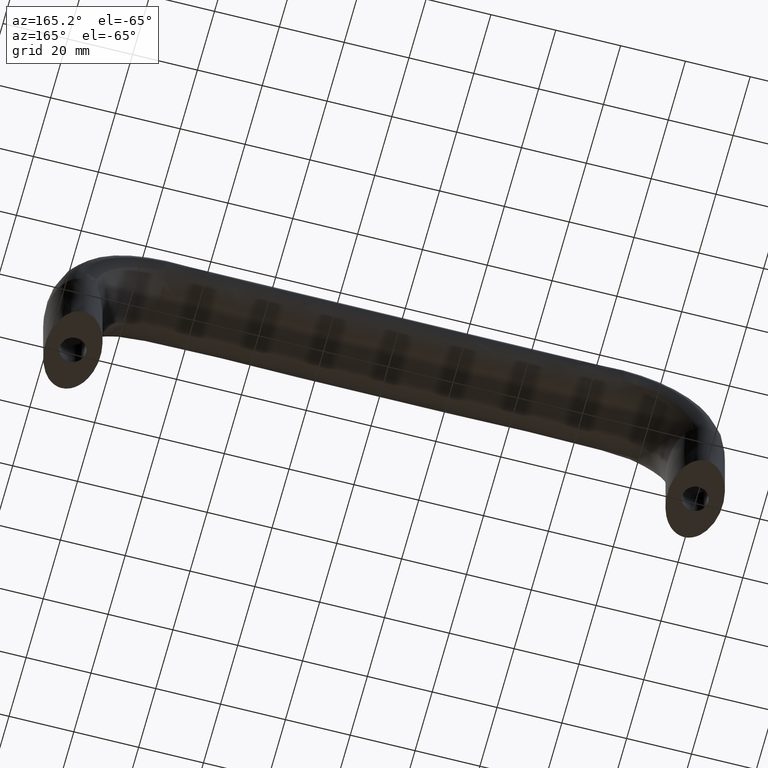
[diagram: clean part render]
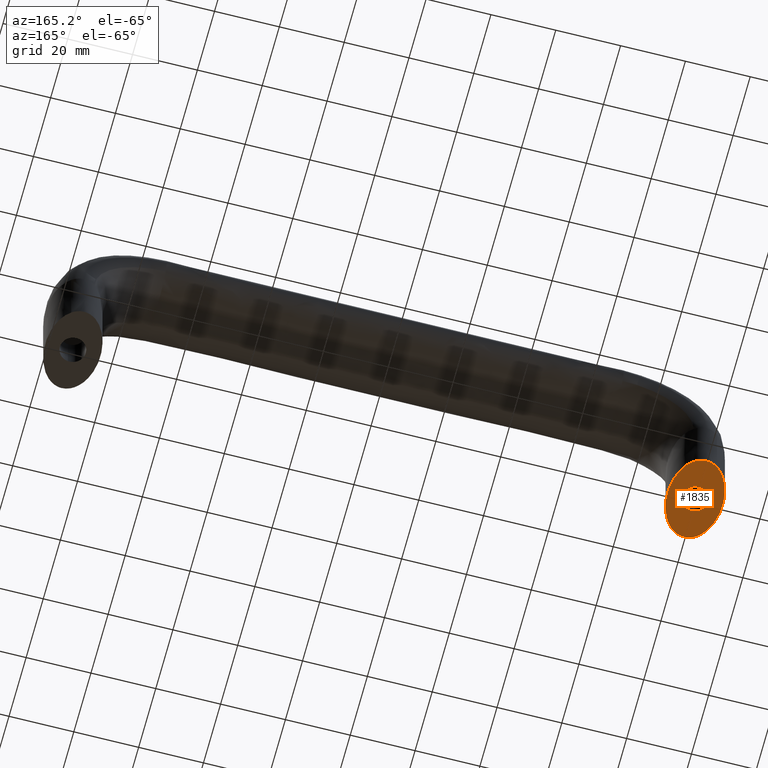
[diagram: same view with one face highlighted and labeled with its STEP entity id]
A machine part, auxiliary view. The second image highlights one B-rep face of the part: STEP entity #1835.
In plain terms, the highlighted face is a freeform B-spline surface patch.
Its self-contained STEP definition (entity closure, byte-faithful):
#85=CARTESIAN_POINT('',(0.472136939499125,-3.972038105351004,-3.407314E-016));
#86=VERTEX_POINT('',#85);
#92=CARTESIAN_POINT('',(-4.0,0.0,0.0));
#93=VERTEX_POINT('',#92);
#94=CARTESIAN_POINT('',(0.472136939499125,-3.972038105351003,-3.407314E-016));
#95=CARTESIAN_POINT('',(0.236896479488952,-4.0,0.0));
#96=CARTESIAN_POINT('',(0.0,-4.0,0.0));
#97=CARTESIAN_POINT('',(-4.000000000000000,-4.000000000000000,0.0));
#98=CARTESIAN_POINT('',(-4.0,0.0,0.0));
#106=(BOUNDED_CURVE()B_SPLINE_CURVE(2,(#94,#95,#96,#97,#98),.UNSPECIFIED.,.F.,.U.)B_SPLINE_CURVE_WITH_KNOTS((3,2,3),(0.229562473441432,0.250000000000000,0.500000000000000),.UNSPECIFIED.)CURVE()GEOMETRIC_REPRESENTATION_ITEM()RATIONAL_B_SPLINE_CURVE((0.956026754042427,0.976055948246703,1.0,0.707106781186548,1.0))REPRESENTATION_ITEM(''));
#107=EDGE_CURVE('',#86,#93,#106,.T.);
#109=CARTESIAN_POINT('',(-0.244194159171717,3.992539193624330,-3.330669E-016));
#110=VERTEX_POINT('',#109);
#111=CARTESIAN_POINT('',(-4.0,0.0,0.0));
#112=CARTESIAN_POINT('',(-4.0,3.762824265673356,0.0));
#113=CARTESIAN_POINT('',(-0.244194159171717,3.992539193624330,-3.330669E-016));
#121=(BOUNDED_CURVE()B_SPLINE_CURVE(2,(#111,#112,#113),.UNSPECIFIED.,.F.,.U.)B_SPLINE_CURVE_WITH_KNOTS((3,3),(0.500000000000000,0.739332962152743),.UNSPECIFIED.)CURVE()GEOMETRIC_REPRESENTATION_ITEM()RATIONAL_B_SPLINE_CURVE((1.0,0.719603993387700,0.976072041481975))REPRESENTATION_ITEM(''));
#122=EDGE_CURVE('',#93,#110,#121,.T.);
#196=CARTESIAN_POINT('',(4.0,0.0,0.0));
#197=VERTEX_POINT('',#196);
#198=CARTESIAN_POINT('',(-0.244194159171717,3.992539193624330,-3.330669E-016));
#199=CARTESIAN_POINT('',(-0.122211054229539,4.0,0.0));
#200=CARTESIAN_POINT('',(0.0,4.0,0.0));
#201=CARTESIAN_POINT('',(4.000000000000000,4.000000000000000,0.0));
#202=CARTESIAN_POINT('',(4.0,0.0,0.0));
#210=(BOUNDED_CURVE()B_SPLINE_CURVE(2,(#198,#199,#200,#201,#202),.UNSPECIFIED.,.F.,.U.)B_SPLINE_CURVE_WITH_KNOTS((3,2,3),(0.739332962152743,0.750000000000000,1.0),.UNSPECIFIED.)CURVE()GEOMETRIC_REPRESENTATION_ITEM()RATIONAL_B_SPLINE_CURVE((0.976072041481975,0.987502787798848,1.0,0.707106781186548,1.0))REPRESENTATION_ITEM(''));
#211=EDGE_CURVE('',#110,#197,#210,.T.);
#213=CARTESIAN_POINT('',(4.0,0.0,0.0));
#214=CARTESIAN_POINT('',(4.0,-3.552698102234447,0.0));
#215=CARTESIAN_POINT('',(0.472136939499125,-3.972038105351003,-3.407314E-016));
#223=(BOUNDED_CURVE()B_SPLINE_CURVE(2,(#213,#214,#215),.UNSPECIFIED.,.F.,.U.)B_SPLINE_CURVE_WITH_KNOTS((3,3),(0.0,0.229562473441432),.UNSPECIFIED.)CURVE()GEOMETRIC_REPRESENTATION_ITEM()RATIONAL_B_SPLINE_CURVE((1.0,0.731050832939845,0.956026754042428))REPRESENTATION_ITEM(''));
#224=EDGE_CURVE('',#197,#86,#223,.T.);
#1628=CARTESIAN_POINT('',(-3.619217702183123,11.762830137887130,0.0));
#1629=VERTEX_POINT('',#1628);
#1637=CARTESIAN_POINT('',(8.777701E-016,-13.0,8.881784E-016));
#1638=VERTEX_POINT('',#1637);
#1639=CARTESIAN_POINT('',(-3.619217702183123,11.762830137887130,0.0));
#1640=CARTESIAN_POINT('',(-4.957315347029514,10.802779190262470,2.684624E-017));
#1641=CARTESIAN_POINT('',(-6.010276827051139,9.192205832866812,7.800054E-017));
#1642=CARTESIAN_POINT('',(-7.206108376400398,7.363103372940632,1.360957E-016));
#1643=CARTESIAN_POINT('',(-7.852867599778408,4.974733499649919,2.166490E-016));
#1644=CARTESIAN_POINT('',(-8.500002102559584,2.584977784475273,2.972490E-016));
#1645=CARTESIAN_POINT('',(-8.499919245078358,-0.000112553339688,3.880306E-016));
#1646=CARTESIAN_POINT('',(-8.499836339519423,-2.586702879291966,4.788649E-016));
#1647=CARTESIAN_POINT('',(-7.852924015491846,-4.974957111626114,5.660542E-016));
#1648=CARTESIAN_POINT('',(-7.205636323232885,-7.364597118715165,6.532941E-016));
#1649=CARTESIAN_POINT('',(-6.010381069697050,-9.192425188288411,7.236173E-016));
#1650=CARTESIAN_POINT('',(-4.814432274190557,-11.021313847620799,7.939813E-016));
#1651=CARTESIAN_POINT('',(-3.252800868497831,-12.010445500098159,8.367323E-016));
#1652=CARTESIAN_POINT('',(-1.690812841452459,-12.999803035243250,8.794930E-016));
#1653=CARTESIAN_POINT('',(8.777701E-016,-13.0,8.881784E-016));
#1654=B_SPLINE_CURVE_WITH_KNOTS('',2,(#1639,#1640,#1641,#1642,#1643,#1644,#1645,#1646,#1647,#1648,#1649,#1650,#1651,#1652,#1653),.UNSPECIFIED.,.F.,.U.,(3,2,2,2,2,2,2,3),(0.139870310622032,0.250000000000000,0.375000000000000,0.500000000000000,0.625000000000000,0.750000000000000,0.875000000000000,1.0),.UNSPECIFIED.);
#1655=EDGE_CURVE('',#1629,#1638,#1654,.T.);
#1744=CARTESIAN_POINT('',(-1.734723E-015,13.0,0.0));
#1745=VERTEX_POINT('',#1744);
#1746=CARTESIAN_POINT('',(9.215718E-016,-12.999999999999989,0.0));
#1747=CARTESIAN_POINT('',(1.691324023247385,-12.999801020701410,0.0));
#1748=CARTESIAN_POINT('',(3.252809175103269,-12.010433922646730,0.0));
#1749=CARTESIAN_POINT('',(4.815278939456166,-11.020442967741570,0.0));
#1750=CARTESIAN_POINT('',(6.010407640085663,-9.192388155425130,0.0));
#1751=CARTESIAN_POINT('',(7.206229809288498,-7.363272621730250,0.0));
#1752=CARTESIAN_POINT('',(7.852976026345942,-4.974884620746192,0.0));
#1753=CARTESIAN_POINT('',(8.500097515277195,-2.585110767294935,0.0));
#1754=CARTESIAN_POINT('',(8.500000000000005,1.508396E-014,0.0));
#1755=CARTESIAN_POINT('',(8.499902428139970,2.586610767339407,0.0));
#1756=CARTESIAN_POINT('',(7.852976026345933,4.974884620746177,0.0));
#1757=CARTESIAN_POINT('',(7.205674248140467,7.364544260335356,0.0));
#1758=CARTESIAN_POINT('',(6.010407640085652,9.192388155425123,0.0));
#1759=CARTESIAN_POINT('',(4.814447483450429,11.021292649489300,0.0));
#1760=CARTESIAN_POINT('',(3.252809175103262,12.010433922646740,0.0));
#1761=CARTESIAN_POINT('',(1.690814243818090,12.999801080674590,0.0));
#1762=CARTESIAN_POINT('',(-1.829591E-015,13.000000000000011,0.0));
#1763=B_SPLINE_CURVE_WITH_KNOTS('',2,(#1746,#1747,#1748,#1749,#1750,#1751,#1752,#1753,#1754,#1755,#1756,#1757,#1758,#1759,#1760,#1761,#1762),.UNSPECIFIED.,.F.,.U.,(3,2,2,2,2,2,2,2,3),(0.0,0.125000000000000,0.250000000000000,0.375000000000000,0.500000000000000,0.625000000000000,0.750000000000000,0.875000000000000,1.0),.UNSPECIFIED.);
#1764=EDGE_CURVE('',#1638,#1745,#1763,.T.);
#1766=CARTESIAN_POINT('',(-1.734723E-015,13.0,0.0));
#1767=CARTESIAN_POINT('',(-1.691264015607178,12.999717384176090,0.0));
#1768=CARTESIAN_POINT('',(-3.252681772387731,12.010256353269821,0.0));
#1769=CARTESIAN_POINT('',(-3.438549035714630,11.892473387638400,0.0));
#1770=CARTESIAN_POINT('',(-3.619217702183123,11.762830137887130,0.0));
#1771=B_SPLINE_CURVE_WITH_KNOTS('',2,(#1766,#1767,#1768,#1769,#1770),.UNSPECIFIED.,.F.,.U.,(3,2,3),(0.0,0.125000000000000,0.139870310622032),.UNSPECIFIED.);
#1772=EDGE_CURVE('',#1745,#1629,#1771,.T.);
#1819=CARTESIAN_POINT('',(9.293603645302582,14.334696442895661,0.0));
#1820=CARTESIAN_POINT('',(9.404366997702088,-14.262275139025780,0.0));
#1821=CARTESIAN_POINT('',(-9.403880146576302,14.262276327349809,0.0));
#1822=CARTESIAN_POINT('',(-9.293116794176797,-14.334695254571630,0.0));
#1823=B_SPLINE_SURFACE_WITH_KNOTS('',1,1,((#1819,#1821),(#1820,#1822)),.UNSPECIFIED.,.F.,.F.,.U.,(2,2),(2,2),(0.0,28.597186088450339),(0.0,18.697624042126559),.UNSPECIFIED.);
#1824=ORIENTED_EDGE('',*,*,#1655,.F.);
#1825=ORIENTED_EDGE('',*,*,#1772,.F.);
#1826=ORIENTED_EDGE('',*,*,#1764,.F.);
#1827=EDGE_LOOP('',(#1824,#1825,#1826));
#1828=FACE_OUTER_BOUND('',#1827,.T.);
#1829=ORIENTED_EDGE('',*,*,#122,.F.);
#1830=ORIENTED_EDGE('',*,*,#107,.F.);
#1831=ORIENTED_EDGE('',*,*,#224,.F.);
#1832=ORIENTED_EDGE('',*,*,#211,.F.);
#1833=EDGE_LOOP('',(#1829,#1830,#1831,#1832));
#1834=FACE_BOUND('',#1833,.T.);
#1835=ADVANCED_FACE('',(#1828,#1834),#1823,.T.);